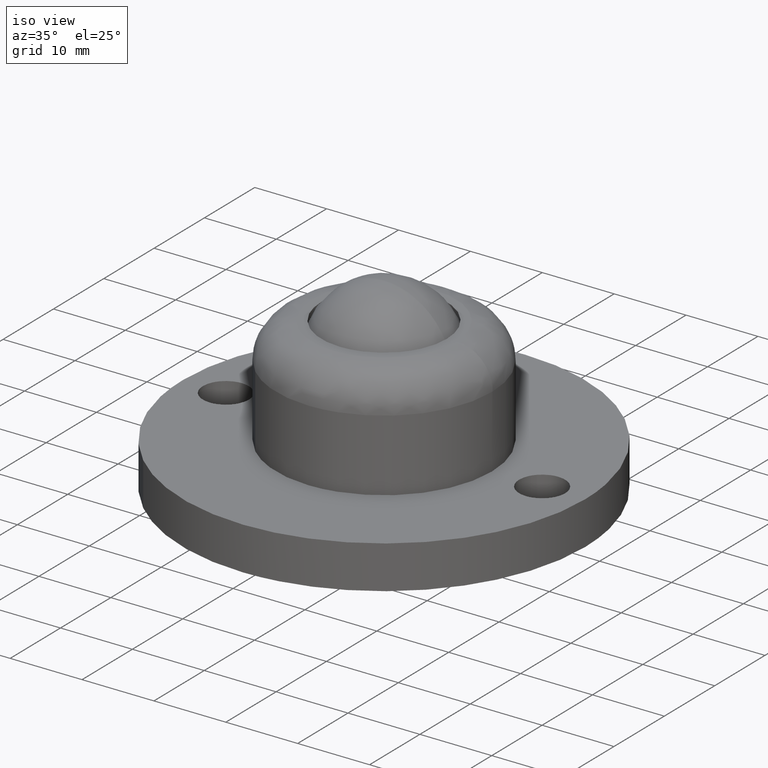
[diagram: clean part render]
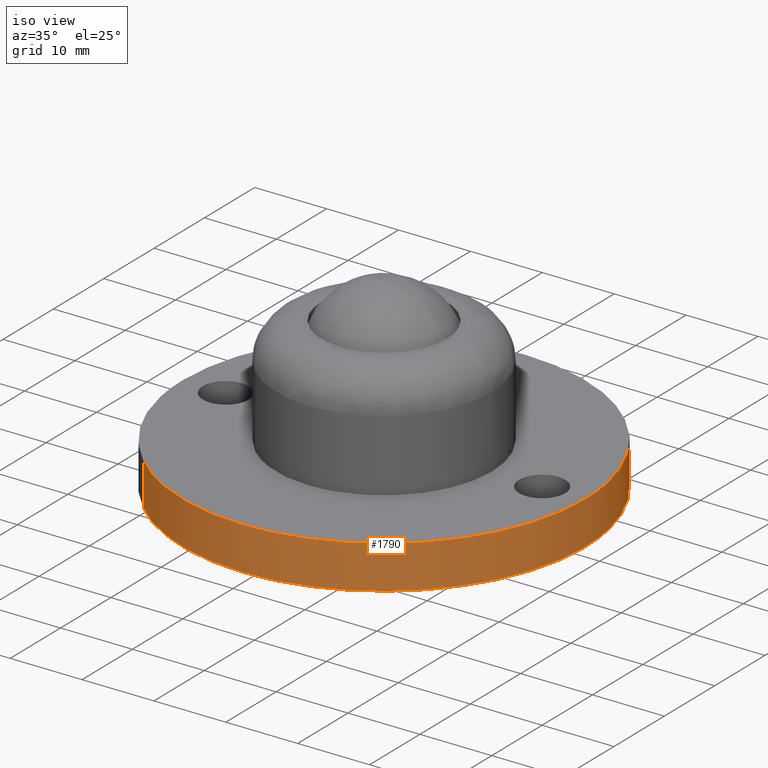
[diagram: tour spotlight — one face highlighted and labeled with its STEP entity id]
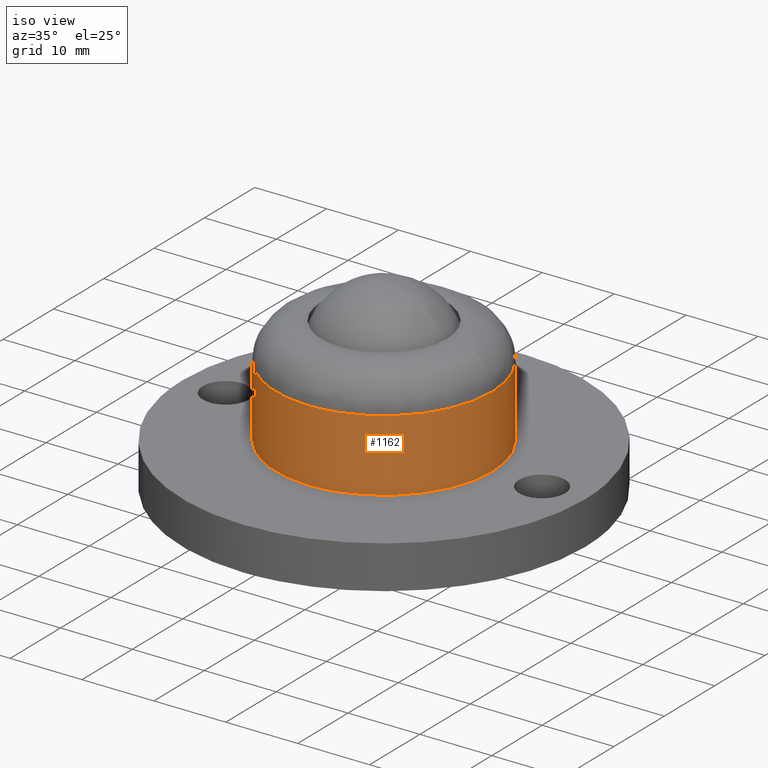
[diagram: tour spotlight — one face highlighted and labeled with its STEP entity id]
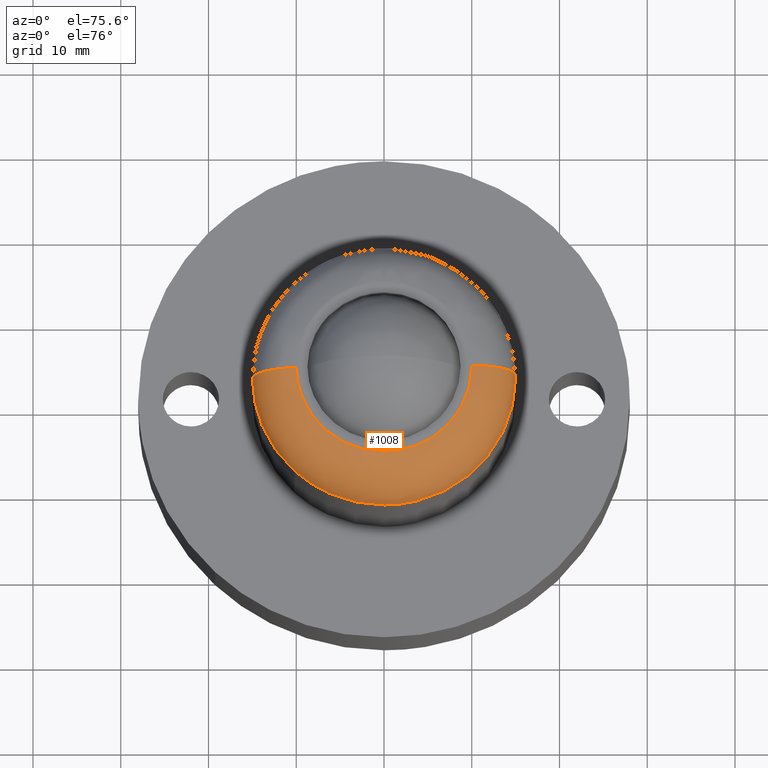
[diagram: tour spotlight — one face highlighted and labeled with its STEP entity id]
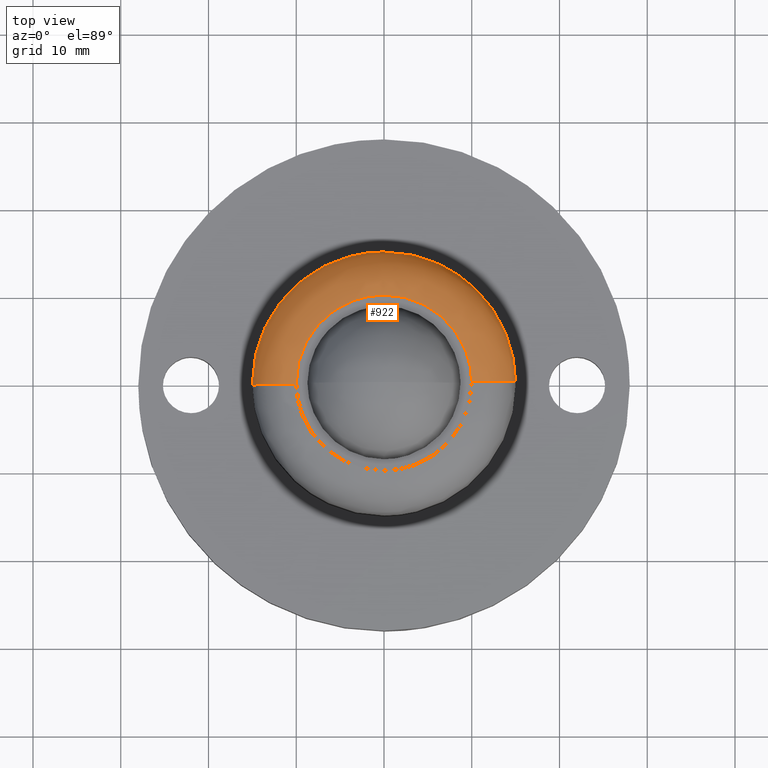
[diagram: tour spotlight — one face highlighted and labeled with its STEP entity id]
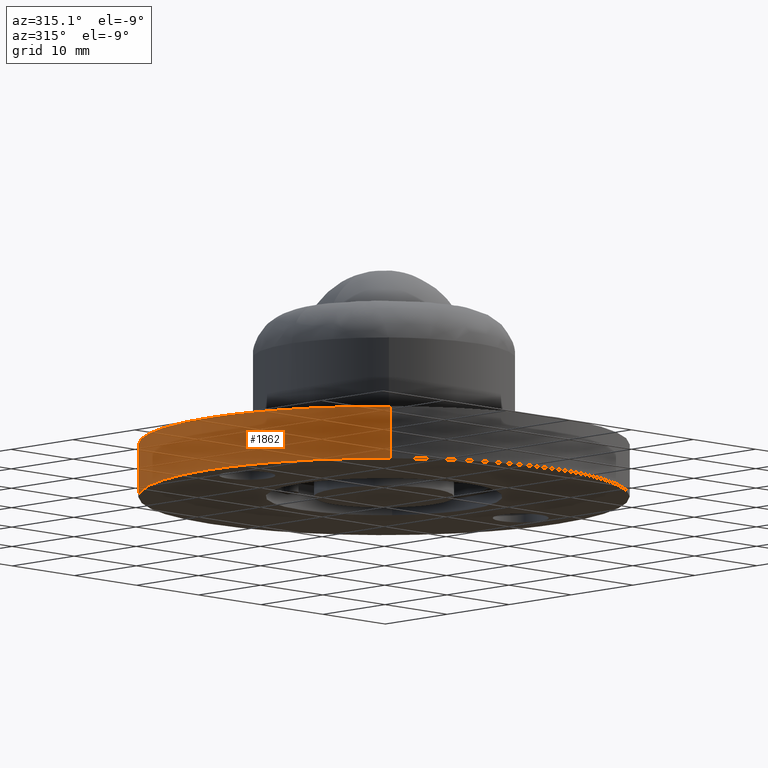
[diagram: tour spotlight — one face highlighted and labeled with its STEP entity id]
A machine part: a face-by-face anatomy tour. The part has 43 B-rep faces; the first image is the clean iso view, then the 5 largest visible faces are spotlighted one at a time (largest first), each with its STEP entity span.

Face 1 — iso view, entity #1790. In plain terms, the highlighted face is a freeform B-spline surface patch.
Definition (entity closure, byte-faithful):
#1168=CARTESIAN_POINT('',(-19.273928130718851,-20.310482377626691,6.000000000000110));
#1169=VERTEX_POINT('',#1168);
#1185=CARTESIAN_POINT('',(0.0,-28.0,6.000000000000110));
#1186=VERTEX_POINT('',#1185);
#1187=CARTESIAN_POINT('',(0.0,-28.0,6.000000000000110));
#1188=CARTESIAN_POINT('',(-1.273272756338156,-28.000045014123359,6.000000000000109));
#1189=CARTESIAN_POINT('',(-3.985896736180282,-27.814696475741041,6.000000000000116));
#1190=CARTESIAN_POINT('',(-7.730061789684950,-27.002848322077789,6.000000000000097));
#1191=CARTESIAN_POINT('',(-11.220473785326821,-25.728882692686440,6.000000000000084));
#1192=CARTESIAN_POINT('',(-14.135886279950119,-24.242272144283440,6.000000000000151));
#1193=CARTESIAN_POINT('',(-16.858855188158099,-22.430060242734768,6.000000000000036));
#1194=CARTESIAN_POINT('',(-18.470818302859989,-21.072643694672202,6.000000000000177));
#1195=CARTESIAN_POINT('',(-19.273928130718851,-20.310482377626691,6.000000000000110));
#1196=B_SPLINE_CURVE_WITH_KNOTS('',3,(#1187,#1188,#1189,#1190,#1191,#1192,#1193,#1194,#1195),.UNSPECIFIED.,.F.,.U.,(4,1,1,1,1,1,4),(5.234206E-009,3.819822314806416,8.137887611719680,11.459454651104700,14.947128572263340,17.936562622358760,21.258141466555099),.UNSPECIFIED.);
#1197=EDGE_CURVE('',#1186,#1169,#1196,.T.);
#1199=CARTESIAN_POINT('',(28.0,0.0,6.000000000000110));
#1200=VERTEX_POINT('',#1199);
#1201=CARTESIAN_POINT('',(28.0,0.0,6.000000000000110));
#1202=CARTESIAN_POINT('',(28.000076249837988,-1.374443402842602,6.000000000000105));
#1203=CARTESIAN_POINT('',(27.822531943628391,-3.779703144594035,6.000000000000131));
#1204=CARTESIAN_POINT('',(27.188107891370880,-6.869826014397530,6.000000000000088));
#1205=CARTESIAN_POINT('',(26.381429841663248,-9.499990134449954,6.000000000000124));
#1206=CARTESIAN_POINT('',(25.205217506865569,-12.364641123564359,6.000000000000084));
#1207=CARTESIAN_POINT('',(23.450359889791049,-15.462409899912069,6.000000000000176));
#1208=CARTESIAN_POINT('',(21.391879244739979,-18.150661715067589,6.000000000000097));
#1209=CARTESIAN_POINT('',(19.138923898207349,-20.517000665945499,6.000000000000112));
#1210=CARTESIAN_POINT('',(16.328139413687659,-22.882267896264018,6.000000000000114));
#1211=CARTESIAN_POINT('',(12.987948747120541,-24.912216936348859,6.000000000000108));
#1212=CARTESIAN_POINT('',(9.508591224995064,-26.403587347672520,6.000000000000117));
#1213=CARTESIAN_POINT('',(6.373189358608293,-27.333763720096499,6.000000000000088));
#1214=CARTESIAN_POINT('',(3.149763346632095,-27.882857546572680,6.000000000000195));
#1215=CARTESIAN_POINT('',(1.030828756229254,-28.000022687795880,5.999999999999764));
#1216=CARTESIAN_POINT('',(0.0,-28.0,6.000000000000110));
#1217=B_SPLINE_CURVE_WITH_KNOTS('',3,(#1201,#1202,#1203,#1204,#1205,#1206,#1207,#1208,#1209,#1210,#1211,#1212,#1213,#1214,#1215,#1216),.UNSPECIFIED.,.F.,.U.,(4,1,1,1,1,1,1,1,1,1,1,1,1,4),(0.000000013098202,4.123326911583426,7.215847821432249,9.449332906309564,12.370044910812609,16.493394751371351,20.101326401665119,22.506580174208398,26.286321359345589,31.096904363942741,34.189417934214489,37.625542341849901,40.889876448166540,43.982366145714813),.UNSPECIFIED.);
#1218=EDGE_CURVE('',#1200,#1186,#1217,.T.);
#1220=CARTESIAN_POINT('',(19.273928130718851,20.310482377626691,6.000000000000110));
#1221=VERTEX_POINT('',#1220);
#1222=CARTESIAN_POINT('',(19.273928130718851,20.310482377626691,6.000000000000110));
#1223=CARTESIAN_POINT('',(20.218344450665100,19.414354821185761,6.000000000000111));
#1224=CARTESIAN_POINT('',(21.741302241059799,17.752399976998412,6.000000000000104));
#1225=CARTESIAN_POINT('',(23.535002146494321,15.247122862021531,6.000000000000128));
#1226=CARTESIAN_POINT('',(24.992965224628289,12.737305890199581,6.000000000000087));
#1227=CARTESIAN_POINT('',(26.206128323567722,10.032679698480230,6.000000000000171));
#1228=CARTESIAN_POINT('',(27.103014224652590,7.208494259070555,6.000000000000010));
#1229=CARTESIAN_POINT('',(27.804361690636320,3.905685441720465,6.000000000000202));
#1230=CARTESIAN_POINT('',(28.000132324409300,1.538626680231457,6.000000000000074));
#1231=CARTESIAN_POINT('',(28.0,0.0,6.000000000000110));
#1232=B_SPLINE_CURVE_WITH_KNOTS('',3,(#1222,#1223,#1224,#1225,#1226,#1227,#1228,#1229,#1230,#1231),.UNSPECIFIED.,.F.,.U.,(4,1,1,1,1,1,1,4),(4.488633E-009,3.905721687732147,6.746254458241012,9.231720163970364,12.604830427692990,15.622902537468301,18.108366910560498,22.724224909126772),.UNSPECIFIED.);
#1233=EDGE_CURVE('',#1221,#1200,#1232,.T.);
#1707=CARTESIAN_POINT('',(19.273928119425101,20.310482388344049,6.150000000000116));
#1708=CARTESIAN_POINT('',(39.584410507769157,1.036554268918941,6.150000000000116));
#1709=CARTESIAN_POINT('',(20.310482388344049,-19.273928119425101,6.150000000000116));
#1710=CARTESIAN_POINT('',(1.036554268918941,-39.584410507769157,6.150000000000116));
#1711=CARTESIAN_POINT('',(-19.273928119425101,-20.310482388344049,6.150000000000116));
#1712=CARTESIAN_POINT('',(19.273928119425101,20.310482388344049,-0.153750000000109));
#1713=CARTESIAN_POINT('',(39.584410507769157,1.036554268918941,-0.153750000000109));
#1714=CARTESIAN_POINT('',(20.310482388344049,-19.273928119425101,-0.153750000000109));
#1715=CARTESIAN_POINT('',(1.036554268918941,-39.584410507769157,-0.153750000000109));
#1716=CARTESIAN_POINT('',(-19.273928119425101,-20.310482388344049,-0.153750000000109));
#1724=(BOUNDED_SURFACE()B_SPLINE_SURFACE(2,1,((#1707,#1712),(#1708,#1713),(#1709,#1714),(#1710,#1715),(#1711,#1716)),.UNSPECIFIED.,.F.,.F.,.U.)B_SPLINE_SURFACE_WITH_KNOTS((3,2,3),(2,2),(0.0,46.391918985786631,92.783837971573263),(0.0,6.303750000000226),.UNSPECIFIED.)GEOMETRIC_REPRESENTATION_ITEM()RATIONAL_B_SPLINE_SURFACE(((1.0,1.0),(0.707106781186548,0.707106781186548),(1.0,1.0),(0.707106781186548,0.707106781186548),(1.0,1.0)))REPRESENTATION_ITEM('')SURFACE());
#1725=CARTESIAN_POINT('',(19.273928130859929,20.310482377492811,-4.467069E-014));
#1726=VERTEX_POINT('',#1725);
#1727=CARTESIAN_POINT('',(28.0,0.0,0.0));
#1728=VERTEX_POINT('',#1727);
#1729=CARTESIAN_POINT('',(19.273928130859929,20.310482377492811,-4.467069E-014));
#1730=CARTESIAN_POINT('',(20.132475116096209,19.495809698643630,-4.210461E-014));
#1731=CARTESIAN_POINT('',(21.665317932090101,17.844264448589001,-3.721870E-014));
#1732=CARTESIAN_POINT('',(23.858480257417298,14.821879223787230,-2.920911E-014));
#1733=CARTESIAN_POINT('',(25.819298197013630,11.158130855632329,-2.056224E-014));
#1734=CARTESIAN_POINT('',(27.114770568252439,7.332693946743636,-1.267857E-014));
#1735=CARTESIAN_POINT('',(27.842846395755629,3.550633745052040,-5.725840E-015));
#1736=CARTESIAN_POINT('',(28.000060378860809,1.301907709527263,-2.011660E-015));
#1737=CARTESIAN_POINT('',(28.0,0.0,0.0));
#1738=B_SPLINE_CURVE_WITH_KNOTS('',3,(#1729,#1730,#1731,#1732,#1733,#1734,#1735,#1736,#1737),.UNSPECIFIED.,.F.,.U.,(4,1,1,1,1,1,4),(4.489728E-009,3.550653828297747,6.746254458183490,11.184583809113141,15.977970455237029,18.818503225721710,22.724224908932278),.UNSPECIFIED.);
#1739=EDGE_CURVE('',#1726,#1728,#1738,.T.);
#1740=ORIENTED_EDGE('',*,*,#1739,.F.);
#1741=CARTESIAN_POINT('',(19.273928130718851,20.310482377626691,6.000000000000110));
#1742=CARTESIAN_POINT('',(19.273928130859929,20.310482377492811,-4.467069E-014));
#1743=QUASI_UNIFORM_CURVE('',1,(#1741,#1742),.UNSPECIFIED.,.F.,.U.);
#1744=EDGE_CURVE('',#1221,#1726,#1743,.T.);
#1745=ORIENTED_EDGE('',*,*,#1744,.F.);
#1746=ORIENTED_EDGE('',*,*,#1233,.T.);
#1747=ORIENTED_EDGE('',*,*,#1218,.T.);
#1748=ORIENTED_EDGE('',*,*,#1197,.T.);
#1749=CARTESIAN_POINT('',(-19.273928130859929,-20.310482377492811,-1.020085E-013));
#1750=VERTEX_POINT('',#1749);
#1751=CARTESIAN_POINT('',(-19.273928130718851,-20.310482377626691,6.000000000000110));
#1752=CARTESIAN_POINT('',(-19.273928130859929,-20.310482377492811,-1.020085E-013));
#1753=QUASI_UNIFORM_CURVE('',1,(#1751,#1752),.UNSPECIFIED.,.F.,.U.);
#1754=EDGE_CURVE('',#1169,#1750,#1753,.T.);
#1755=ORIENTED_EDGE('',*,*,#1754,.T.);
#1756=CARTESIAN_POINT('',(0.0,-28.0,-8.526513E-014));
#1757=VERTEX_POINT('',#1756);
#1758=CARTESIAN_POINT('',(0.0,-28.0,-8.526513E-014));
#1759=CARTESIAN_POINT('',(-1.605438397618750,-28.000135577902050,-8.763522E-014));
#1760=CARTESIAN_POINT('',(-4.318017297702153,-27.766040740922840,-9.128298E-014));
#1761=CARTESIAN_POINT('',(-7.826700851526770,-26.939547584354909,-9.520394E-014));
#1762=CARTESIAN_POINT('',(-10.702353453694920,-25.928504731093550,-9.790946E-014));
#1763=CARTESIAN_POINT('',(-13.659551795668261,-24.529531146999549,-1.001447E-013));
#1764=CARTESIAN_POINT('',(-16.604367127142201,-22.644441706103990,-1.016215E-013));
#1765=CARTESIAN_POINT('',(-18.470811432248759,-21.072632957001101,-1.019834E-013));
#1766=CARTESIAN_POINT('',(-19.273928130859929,-20.310482377492811,-1.020085E-013));
#1767=B_SPLINE_CURVE_WITH_KNOTS('',3,(#1758,#1759,#1760,#1761,#1762,#1763,#1764,#1765,#1766),.UNSPECIFIED.,.F.,.U.,(4,1,1,1,1,1,4),(5.236494E-009,4.816296728663513,8.137887611795735,10.795143712620110,13.950649581649699,17.936562622523500,21.258141466749539),.UNSPECIFIED.);
#1768=EDGE_CURVE('',#1757,#1750,#1767,.T.);
#1769=ORIENTED_EDGE('',*,*,#1768,.F.);
#1770=CARTESIAN_POINT('',(28.0,0.0,0.0));
#1771=CARTESIAN_POINT('',(28.000232533641832,-1.832607456749873,-2.789959E-015));
#1772=CARTESIAN_POINT('',(27.689635167212309,-4.982292385528355,-8.058555E-015));
#1773=CARTESIAN_POINT('',(26.599299450177909,-8.969519843168404,-1.578961E-014));
#1774=CARTESIAN_POINT('',(25.335861846370769,-12.046327157704980,-2.239803E-014));
#1775=CARTESIAN_POINT('',(23.968484513674341,-14.567149611807590,-2.831817E-014));
#1776=CARTESIAN_POINT('',(22.063575819264720,-17.362173407831019,-3.547425E-014));
#1777=CARTESIAN_POINT('',(19.666031906154821,-20.073597446898400,-4.325312E-014));
#1778=CARTESIAN_POINT('',(16.811188763173352,-22.475652633288519,-5.125723E-014));
#1779=CARTESIAN_POINT('',(13.836837273670209,-24.423681155450470,-5.875200E-014));
#1780=CARTESIAN_POINT('',(10.436786011859279,-26.096205281006348,-6.647546E-014));
#1781=CARTESIAN_POINT('',(6.712507521395651,-27.276000760184530,-7.394237E-014));
#1782=CARTESIAN_POINT('',(3.149762356177814,-27.882856056245700,-8.029096E-014));
#1783=CARTESIAN_POINT('',(1.030828602055164,-28.000021514748330,-8.369563E-014));
#1784=CARTESIAN_POINT('',(0.0,-28.0,-8.526513E-014));
#1785=B_SPLINE_CURVE_WITH_KNOTS('',3,(#1770,#1771,#1772,#1773,#1774,#1775,#1776,#1777,#1778,#1779,#1780,#1781,#1782,#1783,#1784),.UNSPECIFIED.,.F.,.U.,(4,1,1,1,1,1,1,1,1,1,1,1,4),(0.000000013098202,5.497783715436704,9.449332906309564,12.370044910812609,15.462564266716280,18.039644025178308,22.506580174208398,26.286321359345589,29.207038563851420,33.158581557591148,37.625542341849901,40.889876448166540,43.982366145714813),.UNSPECIFIED.);
#1786=EDGE_CURVE('',#1728,#1757,#1785,.T.);
#1787=ORIENTED_EDGE('',*,*,#1786,.F.);
#1788=EDGE_LOOP('',(#1740,#1745,#1746,#1747,#1748,#1755,#1769,#1787));
#1789=FACE_OUTER_BOUND('',#1788,.T.);
#1790=ADVANCED_FACE('',(#1789),#1724,.T.);

Face 2 — iso view, entity #1162. In plain terms, the highlighted face is a freeform B-spline surface patch.
Definition (entity closure, byte-faithful):
#836=CARTESIAN_POINT('',(14.998815663056909,0.188490598256681,16.000000000028351));
#837=VERTEX_POINT('',#836);
#852=CARTESIAN_POINT('',(10.187777157768441,11.009504829175681,16.000000000024109));
#853=VERTEX_POINT('',#852);
#854=CARTESIAN_POINT('',(10.187777157768441,11.009504829175681,16.000000000024109));
#855=CARTESIAN_POINT('',(10.839350727993770,10.406671722140560,16.000000000024709));
#856=CARTESIAN_POINT('',(11.821432945125579,9.320873810758158,16.000000000025612));
#857=CARTESIAN_POINT('',(13.092581725004910,7.420534241809883,16.000000000026759));
#858=CARTESIAN_POINT('',(14.102831959163099,5.329665868927488,16.000000000027590));
#859=CARTESIAN_POINT('',(14.813424366985330,2.817647700116391,16.000000000028439));
#860=CARTESIAN_POINT('',(14.988125687793660,1.044387218121508,16.000000000028169));
#861=CARTESIAN_POINT('',(14.998815663056909,0.188490598256681,16.000000000028351));
#862=B_SPLINE_CURVE_WITH_KNOTS('',3,(#854,#855,#856,#857,#858,#859,#860,#861),.UNSPECIFIED.,.F.,.U.,(4,1,1,1,1,4),(0.000000011828549,2.662994156154062,4.374927556151388,6.847689595747325,9.605806306162791,12.173691903141931),.UNSPECIFIED.);
#863=EDGE_CURVE('',#853,#837,#862,.T.);
#955=CARTESIAN_POINT('',(-10.187777157768441,-11.009504829175690,16.000000000024102));
#956=VERTEX_POINT('',#955);
#968=CARTESIAN_POINT('',(0.094237883479936,-14.999703971122511,16.000000000014179));
#969=VERTEX_POINT('',#968);
#970=CARTESIAN_POINT('',(0.094237883479936,-14.999703971122511,16.000000000014179));
#971=CARTESIAN_POINT('',(-1.111638862749991,-15.007593900225920,16.000000000015259));
#972=CARTESIAN_POINT('',(-3.201243809358497,-14.767134057480501,16.000000000017391));
#973=CARTESIAN_POINT('',(-6.085081956337157,-13.801513283906990,16.000000000020229));
#974=CARTESIAN_POINT('',(-8.333795846247371,-12.556926919397490,16.000000000022212));
#975=CARTESIAN_POINT('',(-9.648112347047263,-11.508912649489909,16.000000000023700));
#976=CARTESIAN_POINT('',(-10.187777157768441,-11.009504829175690,16.000000000024102));
#977=B_SPLINE_CURVE_WITH_KNOTS('',3,(#970,#971,#972,#973,#974,#975,#976),.UNSPECIFIED.,.F.,.U.,(4,1,1,1,4),(0.000000010007371,3.617620953228951,6.264647123078524,9.088167222938841,11.294032616947780),.UNSPECIFIED.);
#978=EDGE_CURVE('',#969,#956,#977,.T.);
#980=CARTESIAN_POINT('',(14.999999999999700,0.0,16.0));
#981=VERTEX_POINT('',#980);
#982=CARTESIAN_POINT('',(14.999999999999700,0.0,16.0));
#983=CARTESIAN_POINT('',(15.000049350712120,-0.763919839272527,16.000000000000011));
#984=CARTESIAN_POINT('',(14.901734651123430,-2.047290388768373,16.000000000000089));
#985=CARTESIAN_POINT('',(14.540919645675610,-3.784917162419245,16.000000000000451));
#986=CARTESIAN_POINT('',(13.997939917733220,-5.506336039490239,16.000000000001009));
#987=CARTESIAN_POINT('',(13.031482425436259,-7.592360577852523,16.000000000001819));
#988=CARTESIAN_POINT('',(11.473930591467919,-9.801130858795274,16.000000000003631));
#989=CARTESIAN_POINT('',(9.596695463565007,-11.610925649067619,16.000000000005048));
#990=CARTESIAN_POINT('',(7.962673519767044,-12.748664229661729,16.000000000006811));
#991=CARTESIAN_POINT('',(6.458337481296235,-13.567059214938320,16.000000000008111));
#992=CARTESIAN_POINT('',(4.849344520775965,-14.242469142512260,16.000000000009688));
#993=CARTESIAN_POINT('',(2.659981553274595,-14.831828937251499,16.000000000011742));
#994=CARTESIAN_POINT('',(1.010931536863265,-14.994043661234061,16.000000000013319));
#995=CARTESIAN_POINT('',(0.094237883479936,-14.999703971122511,16.000000000014179));
#996=B_SPLINE_CURVE_WITH_KNOTS('',3,(#982,#983,#984,#985,#986,#987,#988,#989,#990,#991,#992,#993,#994,#995),.UNSPECIFIED.,.F.,.U.,(4,1,1,1,1,1,1,1,1,1,1,4),(0.000000043158789,2.291753721640276,3.850165607686915,5.316910063546843,7.700357803954621,10.725516345794251,13.383946917941239,15.492373854090911,16.684093316406059,18.517521080349631,20.717623584914190,23.467742918632531),.UNSPECIFIED.);
#997=EDGE_CURVE('',#981,#969,#996,.T.);
#999=CARTESIAN_POINT('',(14.998815663056909,0.188490598256681,16.000000000028351));
#1000=CARTESIAN_POINT('',(14.999999999999700,0.0,16.0));
#1001=QUASI_UNIFORM_CURVE('',1,(#999,#1000),.UNSPECIFIED.,.F.,.U.);
#1002=EDGE_CURVE('',#837,#981,#1001,.T.);
#1031=CARTESIAN_POINT('',(10.187777206663190,11.009504958492119,6.000000000000091));
#1032=VERTEX_POINT('',#1031);
#1033=CARTESIAN_POINT('',(10.187777157768441,11.009504829175681,16.000000000024109));
#1034=CARTESIAN_POINT('',(10.187777206663190,11.009504958492119,6.000000000000091));
#1035=QUASI_UNIFORM_CURVE('',1,(#1033,#1034),.UNSPECIFIED.,.F.,.U.);
#1036=EDGE_CURVE('',#853,#1032,#1035,.T.);
#1071=CARTESIAN_POINT('',(-10.187777206663080,-11.009504958492011,6.000000000000091));
#1072=VERTEX_POINT('',#1071);
#1085=CARTESIAN_POINT('',(-10.187777157768441,-11.009504829175690,16.000000000024102));
#1086=CARTESIAN_POINT('',(-10.187777206663080,-11.009504958492011,6.000000000000091));
#1087=QUASI_UNIFORM_CURVE('',1,(#1085,#1086),.UNSPECIFIED.,.F.,.U.);
#1088=EDGE_CURVE('',#956,#1072,#1087,.T.);
#1093=CARTESIAN_POINT('',(10.187777142500170,11.009504843304359,16.250000000029061));
#1094=CARTESIAN_POINT('',(21.197281985804530,0.821727700804189,16.250000000029065));
#1095=CARTESIAN_POINT('',(11.009504843304359,-10.187777142500170,16.250000000029061));
#1096=CARTESIAN_POINT('',(0.821727700804189,-21.197281985804530,16.250000000029065));
#1097=CARTESIAN_POINT('',(-10.187777142500170,-11.009504843304359,16.250000000029061));
#1098=CARTESIAN_POINT('',(10.187777142500170,11.009504843304359,5.743749999999366));
#1099=CARTESIAN_POINT('',(21.197281985804530,0.821727700804189,5.743749999999367));
#1100=CARTESIAN_POINT('',(11.009504843304359,-10.187777142500170,5.743749999999366));
#1101=CARTESIAN_POINT('',(0.821727700804189,-21.197281985804530,5.743749999999367));
#1102=CARTESIAN_POINT('',(-10.187777142500170,-11.009504843304359,5.743749999999366));
#1110=(BOUNDED_SURFACE()B_SPLINE_SURFACE(2,1,((#1093,#1098),(#1094,#1099),(#1095,#1100),(#1096,#1101),(#1097,#1102)),.UNSPECIFIED.,.F.,.F.,.U.)B_SPLINE_SURFACE_WITH_KNOTS((3,2,3),(2,2),(0.0,24.852813742385202,49.705627484770403),(0.0,10.506250000029700),.UNSPECIFIED.)GEOMETRIC_REPRESENTATION_ITEM()RATIONAL_B_SPLINE_SURFACE(((1.0,1.0),(0.707106781186548,0.707106781186548),(1.0,1.0),(0.707106781186548,0.707106781186548),(1.0,1.0)))REPRESENTATION_ITEM('')SURFACE());
#1111=ORIENTED_EDGE('',*,*,#978,.T.);
#1112=ORIENTED_EDGE('',*,*,#1088,.T.);
#1113=CARTESIAN_POINT('',(-0.000000514032385,-14.999999999999689,6.000000000000091));
#1114=VERTEX_POINT('',#1113);
#1115=CARTESIAN_POINT('',(-0.000000514032385,-14.999999999999689,6.000000000000091));
#1116=CARTESIAN_POINT('',(-0.612486380762245,-15.000007512640501,6.000000000000085));
#1117=CARTESIAN_POINT('',(-2.041632659957544,-14.912391503870349,6.000000000000096));
#1118=CARTESIAN_POINT('',(-4.104840186136603,-14.485224483817150,6.000000000000114));
#1119=CARTESIAN_POINT('',(-6.271835620210035,-13.687035738509350,5.999999999999959));
#1120=CARTESIAN_POINT('',(-8.298802825095629,-12.575349904580261,6.000000000000405));
#1121=CARTESIAN_POINT('',(-9.588416002722303,-11.564199267907529,5.999999999999914));
#1122=CARTESIAN_POINT('',(-10.187777206663080,-11.009504958492011,6.000000000000091));
#1123=B_SPLINE_CURVE_WITH_KNOTS('',3,(#1115,#1116,#1117,#1118,#1119,#1120,#1121,#1122),.UNSPECIFIED.,.F.,.U.,(4,1,1,1,1,4),(0.000000010247307,1.837463576933532,4.287428578647943,6.299882818497271,8.749840359497647,11.199793191182140),.UNSPECIFIED.);
#1124=EDGE_CURVE('',#1114,#1072,#1123,.T.);
#1125=ORIENTED_EDGE('',*,*,#1124,.F.);
#1126=CARTESIAN_POINT('',(14.999999999999700,0.0,6.000000000000091));
#1127=VERTEX_POINT('',#1126);
#1128=CARTESIAN_POINT('',(14.999999999999700,0.0,6.000000000000091));
#1129=CARTESIAN_POINT('',(15.000074989132790,-0.859028561157862,6.000000000000092));
#1130=CARTESIAN_POINT('',(14.873135216475511,-2.331619973652520,6.000000000000092));
#1131=CARTESIAN_POINT('',(14.411484289227801,-4.275486703482938,6.000000000000091));
#1132=CARTESIAN_POINT('',(13.774749252262369,-6.038015752824640,6.000000000000098));
#1133=CARTESIAN_POINT('',(12.850795486046691,-7.845957132644837,6.000000000000031));
#1134=CARTESIAN_POINT('',(11.522617060220361,-9.695436405983568,6.000000000000297));
#1135=CARTESIAN_POINT('',(9.992102601258972,-11.254362318997190,5.999999999999572));
#1136=CARTESIAN_POINT('',(8.429884911336441,-12.450521420028830,6.000000000001021));
#1137=CARTESIAN_POINT('',(6.975045998450100,-13.310414503479890,5.999999999998920));
#1138=CARTESIAN_POINT('',(5.355305826043135,-14.052333010226111,6.000000000000621));
#1139=CARTESIAN_POINT('',(3.067853891443439,-14.777058512150679,5.999999999999691));
#1140=CARTESIAN_POINT('',(1.165848423785105,-15.000278523035799,6.000000000000265));
#1141=CARTESIAN_POINT('',(-0.000000514032385,-14.999999999999689,6.000000000000091));
#1142=B_SPLINE_CURVE_WITH_KNOTS('',3,(#1128,#1129,#1130,#1131,#1132,#1133,#1134,#1135,#1136,#1137,#1138,#1139,#1140,#1141),.UNSPECIFIED.,.F.,.U.,(4,1,1,1,1,1,1,1,1,1,1,4),(0.000000042430347,2.577074003765791,4.417864152545988,5.982535173357384,8.191481220354053,10.492469042058600,12.793394615243740,14.726222933293659,16.382934603020232,17.855565148970069,20.064513218020121,23.561982153493940),.UNSPECIFIED.);
#1143=EDGE_CURVE('',#1127,#1114,#1142,.T.);
#1144=ORIENTED_EDGE('',*,*,#1143,.F.);
#1145=CARTESIAN_POINT('',(10.187777206663190,11.009504958492119,6.000000000000091));
#1146=CARTESIAN_POINT('',(10.825793576460260,10.419190775720940,6.000000000000093));
#1147=CARTESIAN_POINT('',(12.042248791890410,9.079397211945965,6.000000000000076));
#1148=CARTESIAN_POINT('',(13.512198221835259,6.718989046687209,6.000000000000124));
#1149=CARTESIAN_POINT('',(14.475388324627840,4.213197168492525,6.000000000000032));
#1150=CARTESIAN_POINT('',(14.921575609628221,1.931588104744306,6.000000000000221));
#1151=CARTESIAN_POINT('',(15.000008868001130,0.579473644619647,5.999999999999924));
#1152=CARTESIAN_POINT('',(14.999999999999700,0.0,6.000000000000091));
#1153=B_SPLINE_CURVE_WITH_KNOTS('',3,(#1145,#1146,#1147,#1148,#1149,#1150,#1151,#1152),.UNSPECIFIED.,.F.,.U.,(4,1,1,1,1,4),(0.000000012767995,2.607646497180639,5.408470164318436,8.305842821939400,10.623762905842790,12.362188529042729),.UNSPECIFIED.);
#1154=EDGE_CURVE('',#1032,#1127,#1153,.T.);
#1155=ORIENTED_EDGE('',*,*,#1154,.F.);
#1156=ORIENTED_EDGE('',*,*,#1036,.F.);
#1157=ORIENTED_EDGE('',*,*,#863,.T.);
#1158=ORIENTED_EDGE('',*,*,#1002,.T.);
#1159=ORIENTED_EDGE('',*,*,#997,.T.);
#1160=EDGE_LOOP('',(#1111,#1112,#1125,#1144,#1155,#1156,#1157,#1158,#1159));
#1161=FACE_OUTER_BOUND('',#1160,.T.);
#1162=ADVANCED_FACE('',(#1161),#1110,.T.);

Face 3 — auxiliary view, entity #1008. In plain terms, the highlighted face is a freeform B-spline surface patch.
Definition (entity closure, byte-faithful):
#709=CARTESIAN_POINT('',(-9.999210443095326,-0.125660399110086,21.0));
#710=VERTEX_POINT('',#709);
#718=CARTESIAN_POINT('',(0.062805054344614,-9.999802774315672,21.0));
#719=VERTEX_POINT('',#718);
#720=CARTESIAN_POINT('',(0.062805054344614,-9.999802774315672,21.0));
#721=CARTESIAN_POINT('',(-0.813177316599174,-10.005611807915180,21.000000000000011));
#722=CARTESIAN_POINT('',(-2.240137805728252,-9.825584995934372,20.999999999999961));
#723=CARTESIAN_POINT('',(-4.245028264484744,-9.118679754629701,21.000000000000121));
#724=CARTESIAN_POINT('',(-5.715664766248270,-8.266019202241598,20.999999999999680));
#725=CARTESIAN_POINT('',(-7.062549182978366,-7.139480367335418,21.000000000000711));
#726=CARTESIAN_POINT('',(-8.109148617273645,-5.935038905590992,20.999999999999570));
#727=CARTESIAN_POINT('',(-8.913272797161460,-4.606307559138471,21.000000000000551));
#728=CARTESIAN_POINT('',(-9.418327271868757,-3.423861902667085,20.999999999999819));
#729=CARTESIAN_POINT('',(-9.850949381412008,-1.977667107635396,21.000000000000131));
#730=CARTESIAN_POINT('',(-9.989891004483095,-0.879353541175013,20.999999999999929));
#731=CARTESIAN_POINT('',(-9.999210443095326,-0.125660399110086,21.0));
#732=B_SPLINE_CURVE_WITH_KNOTS('',3,(#720,#721,#722,#723,#724,#725,#726,#727,#728,#729,#730,#731),.UNSPECIFIED.,.F.,.U.,(4,1,1,1,1,1,1,1,1,4),(0.000000047510442,2.627890225191633,4.277968296809620,6.355845185855008,7.700348531167800,9.533736820823030,11.122706289565389,12.344987796700931,13.383924157297240,15.645129376216531),.UNSPECIFIED.);
#733=EDGE_CURVE('',#719,#710,#732,.T.);
#735=CARTESIAN_POINT('',(9.999999999999799,0.0,21.0));
#736=VERTEX_POINT('',#735);
#737=CARTESIAN_POINT('',(9.999999999999799,0.0,21.0));
#738=CARTESIAN_POINT('',(10.000003490425980,-0.427790089742249,21.000000000000011));
#739=CARTESIAN_POINT('',(9.933282028173654,-1.466732670302480,20.999999999999979));
#740=CARTESIAN_POINT('',(9.602922146305694,-2.944057803672374,21.000000000000050));
#741=CARTESIAN_POINT('',(8.971096966647487,-4.516926613015439,20.999999999999851));
#742=CARTESIAN_POINT('',(8.198310368174633,-5.794780078665727,21.000000000000171));
#743=CARTESIAN_POINT('',(7.216039979824836,-6.968749764925461,20.999999999999460));
#744=CARTESIAN_POINT('',(6.096127918859487,-7.984408327194137,21.000000000000281));
#745=CARTESIAN_POINT('',(4.634102803416174,-8.924843047394088,21.000000000000309));
#746=CARTESIAN_POINT('',(3.005242958625298,-9.591029212677146,21.000000000000089));
#747=CARTESIAN_POINT('',(1.447629749438859,-9.929589153354248,20.999999999999851));
#748=CARTESIAN_POINT('',(0.490586444072640,-9.997125353850032,21.000000000000089));
#749=CARTESIAN_POINT('',(0.062805054344614,-9.999802774315672,21.0));
#750=B_SPLINE_CURVE_WITH_KNOTS('',3,(#737,#738,#739,#740,#741,#742,#743,#744,#745,#746,#747,#748,#749),.UNSPECIFIED.,.F.,.U.,(4,1,1,1,1,1,1,1,1,1,4),(0.000000047499384,1.283376662270145,3.116807906655010,4.522440044570654,6.355866624291405,7.578154394551026,9.105963730929386,10.878289453026751,12.772833015318030,14.361809512010151,15.645182147335310),.UNSPECIFIED.);
#751=EDGE_CURVE('',#736,#719,#750,.T.);
#753=CARTESIAN_POINT('',(9.999210443095326,0.125660399110083,21.0));
#754=VERTEX_POINT('',#753);
#755=CARTESIAN_POINT('',(9.999210443095326,0.125660399110083,21.0));
#756=CARTESIAN_POINT('',(9.999999999999799,0.0,21.0));
#757=QUASI_UNIFORM_CURVE('',1,(#755,#756),.UNSPECIFIED.,.F.,.U.);
#758=EDGE_CURVE('',#754,#736,#757,.T.);
#836=CARTESIAN_POINT('',(14.998815663056909,0.188490598256681,16.000000000028351));
#837=VERTEX_POINT('',#836);
#838=CARTESIAN_POINT('',(9.999210443095326,0.125660399110083,21.0));
#839=CARTESIAN_POINT('',(10.387788195336460,0.130543668194947,21.000073228685601));
#840=CARTESIAN_POINT('',(11.083105219888150,0.139281739558463,20.918517800675321));
#841=CARTESIAN_POINT('',(12.075665199593249,0.151755272673702,20.583829168533569));
#842=CARTESIAN_POINT('',(12.824482642775390,0.161165685506428,20.153495871584379));
#843=CARTESIAN_POINT('',(13.505555480329081,0.169724749702471,19.594486257398920));
#844=CARTESIAN_POINT('',(14.090936950197580,0.177081257406696,18.932487727669120));
#845=CARTESIAN_POINT('',(14.551931083296720,0.182874585453589,18.130105608152899));
#846=CARTESIAN_POINT('',(14.904261601229960,0.187302334356154,17.145294590783870));
#847=CARTESIAN_POINT('',(14.998990405252970,0.188492794259027,16.449988617136839));
#848=CARTESIAN_POINT('',(14.998815663056909,0.188490598256681,16.000000000028351));
#849=B_SPLINE_CURVE_WITH_KNOTS('',3,(#838,#839,#840,#841,#842,#843,#844,#845,#846,#847,#848),.UNSPECIFIED.,.F.,.U.,(4,1,1,1,1,1,1,1,4),(0.000000068281783,1.165819906739270,2.086227593642232,3.129347933387471,3.742961985702338,4.724685170284943,5.767803822646645,6.504122126097486,7.854030913764103),.UNSPECIFIED.);
#850=EDGE_CURVE('',#754,#837,#849,.T.);
#897=CARTESIAN_POINT('',(-14.998815663056909,-0.188490598256684,16.000000000028351));
#898=VERTEX_POINT('',#897);
#904=CARTESIAN_POINT('',(-9.999210443095326,-0.125660399110086,21.0));
#905=CARTESIAN_POINT('',(-10.305978983867300,-0.129515569208530,21.000029997598499));
#906=CARTESIAN_POINT('',(-10.899060140964050,-0.136968839144892,20.945242012907698));
#907=CARTESIAN_POINT('',(-11.690400812992079,-0.146913642764850,20.726232138658609));
#908=CARTESIAN_POINT('',(-12.437944547674761,-0.156308048864381,20.389343201120671));
#909=CARTESIAN_POINT('',(-13.020926574719271,-0.163634402700751,20.004928901064851));
#910=CARTESIAN_POINT('',(-13.588484514738029,-0.170766921537373,19.503026674048080));
#911=CARTESIAN_POINT('',(-14.030930870097890,-0.176327159073509,18.990063221977589));
#912=CARTESIAN_POINT('',(-14.454469925511070,-0.181649787960094,18.312001369460329));
#913=CARTESIAN_POINT('',(-14.721358373851119,-0.185003783640892,17.689354654639740));
#914=CARTESIAN_POINT('',(-14.939800324739981,-0.187748950628916,16.899904162793931));
#915=CARTESIAN_POINT('',(-14.998893565726959,-0.188491577271497,16.368162896276971));
#916=CARTESIAN_POINT('',(-14.998815663056909,-0.188490598256684,16.000000000028351));
#917=B_SPLINE_CURVE_WITH_KNOTS('',3,(#904,#905,#906,#907,#908,#909,#910,#911,#912,#913,#914,#915,#916),.UNSPECIFIED.,.F.,.U.,(4,1,1,1,1,1,1,1,1,1,4),(0.000000068284439,0.920377623177933,1.779427746839093,2.454392946490633,3.374781358420133,3.865675674094828,4.724685170285328,5.399638217654845,6.258681907733037,6.749563481132405,7.854030913764108),.UNSPECIFIED.);
#918=EDGE_CURVE('',#710,#898,#917,.T.);
#923=CARTESIAN_POINT('',(9.648161495745667,0.391117288341113,20.987896831538553));
#924=CARTESIAN_POINT('',(9.649847077334501,0.256990028039292,20.987896831538546));
#925=CARTESIAN_POINT('',(9.772843775876016,-9.530261037604062,20.987896831538542));
#926=CARTESIAN_POINT('',(0.121291369135977,-9.651552406740040,20.987896831538553));
#927=CARTESIAN_POINT('',(-9.530261037604062,-9.772843775876016,20.987896831538542));
#928=CARTESIAN_POINT('',(-9.653257736143972,0.014407289639730,20.987896831538549));
#929=CARTESIAN_POINT('',(-9.654943317731242,0.148534549816890,20.987896831538549));
#930=CARTESIAN_POINT('',(15.381065069967507,0.623517803326215,21.387685645394789));
#931=CARTESIAN_POINT('',(15.383752218198808,0.409692597428857,21.387685645394797));
#932=CARTESIAN_POINT('',(15.579833121746322,-15.193108574913534,21.387685645394786));
#933=CARTESIAN_POINT('',(0.193362273416396,-15.386470848329932,21.387685645394782));
#934=CARTESIAN_POINT('',(-15.193108574913534,-15.579833121746326,21.387685645394786));
#935=CARTESIAN_POINT('',(-15.389189478458503,0.022968050392633,21.387685645394782));
#936=CARTESIAN_POINT('',(-15.391876626687305,0.236793256091257,21.387685645394793));
#937=CARTESIAN_POINT('',(14.981448110232146,0.607318126140491,15.652314374123481));
#938=CARTESIAN_POINT('',(14.984065443401764,0.399048333883657,15.652314374123476));
#939=CARTESIAN_POINT('',(15.175051949767992,-14.798374931305787,15.652314374123485));
#940=CARTESIAN_POINT('',(0.188338509231102,-14.986713440536885,15.652314374123485));
#941=CARTESIAN_POINT('',(-14.798374931305787,-15.175051949767992,15.652314374123485));
#942=CARTESIAN_POINT('',(-14.989361437669523,0.022371315223307,15.652314374123481));
#943=CARTESIAN_POINT('',(-14.991978770836710,0.230641107286569,15.652314374123486));
#951=(BOUNDED_SURFACE()B_SPLINE_SURFACE(2,2,((#923,#930,#937),(#924,#931,#938),(#925,#932,#939),(#926,#933,#940),(#927,#934,#941),(#928,#935,#942),(#929,#936,#943)),.UNSPECIFIED.,.F.,.F.,.U.)B_SPLINE_SURFACE_WITH_KNOTS((3,1,2,1,3),(3,3),(0.0,0.496655211271985,25.329415751530000,50.162176291788022,50.658831502590232),(0.0,9.113649822426600),.UNSPECIFIED.)GEOMETRIC_REPRESENTATION_ITEM()RATIONAL_B_SPLINE_SURFACE(((0.927077710683399,0.608371547722107,0.927077722436361),(0.921709902962166,0.604849058233244,0.921709914647078),(0.647951709431553,0.425202094466791,0.647951717645915),(0.916342095240933,0.601326568744382,0.916342106857795),(0.647951709431553,0.425202094466791,0.647951717645915),(0.921709902957088,0.604849058229912,0.921709914642000),(0.927077710673244,0.608371547715443,0.927077722426206)))REPRESENTATION_ITEM('')SURFACE());
#952=ORIENTED_EDGE('',*,*,#751,.T.);
#953=ORIENTED_EDGE('',*,*,#733,.T.);
#954=ORIENTED_EDGE('',*,*,#918,.T.);
#955=CARTESIAN_POINT('',(-10.187777157768441,-11.009504829175690,16.000000000024102));
#956=VERTEX_POINT('',#955);
#957=CARTESIAN_POINT('',(-10.187777157768441,-11.009504829175690,16.000000000024102));
#958=CARTESIAN_POINT('',(-10.699688886547790,-10.535817573273169,16.000000000024588));
#959=CARTESIAN_POINT('',(-11.831472723339941,-9.331669652685813,16.000000000025619));
#960=CARTESIAN_POINT('',(-13.194860554562430,-7.293508977662248,16.000000000026809));
#961=CARTESIAN_POINT('',(-14.131171656672800,-5.169143178849978,16.000000000027669));
#962=CARTESIAN_POINT('',(-14.795473843492729,-2.849069167650152,16.000000000028258));
#963=CARTESIAN_POINT('',(-14.985854506237620,-1.234604903208745,16.000000000028340));
#964=CARTESIAN_POINT('',(-14.998815663056909,-0.188490598256684,16.000000000028351));
#965=B_SPLINE_CURVE_WITH_KNOTS('',3,(#957,#958,#959,#960,#961,#962,#963,#964),.UNSPECIFIED.,.F.,.U.,(4,1,1,1,1,4),(0.000000011830187,2.092352651813375,4.945570902497063,7.323235241210510,9.035161600871003,12.173691903141931),.UNSPECIFIED.);
#966=EDGE_CURVE('',#956,#898,#965,.T.);
#967=ORIENTED_EDGE('',*,*,#966,.F.);
#968=CARTESIAN_POINT('',(0.094237883479936,-14.999703971122511,16.000000000014179));
#969=VERTEX_POINT('',#968);
#970=CARTESIAN_POINT('',(0.094237883479936,-14.999703971122511,16.000000000014179));
#971=CARTESIAN_POINT('',(-1.111638862749991,-15.007593900225920,16.000000000015259));
#972=CARTESIAN_POINT('',(-3.201243809358497,-14.767134057480501,16.000000000017391));
#973=CARTESIAN_POINT('',(-6.085081956337157,-13.801513283906990,16.000000000020229));
#974=CARTESIAN_POINT('',(-8.333795846247371,-12.556926919397490,16.000000000022212));
#975=CARTESIAN_POINT('',(-9.648112347047263,-11.508912649489909,16.000000000023700));
#976=CARTESIAN_POINT('',(-10.187777157768441,-11.009504829175690,16.000000000024102));
#977=B_SPLINE_CURVE_WITH_KNOTS('',3,(#970,#971,#972,#973,#974,#975,#976),.UNSPECIFIED.,.F.,.U.,(4,1,1,1,4),(0.000000010007371,3.617620953228951,6.264647123078524,9.088167222938841,11.294032616947780),.UNSPECIFIED.);
#978=EDGE_CURVE('',#969,#956,#977,.T.);
#979=ORIENTED_EDGE('',*,*,#978,.F.);
#980=CARTESIAN_POINT('',(14.999999999999700,0.0,16.0));
#981=VERTEX_POINT('',#980);
#982=CARTESIAN_POINT('',(14.999999999999700,0.0,16.0));
#983=CARTESIAN_POINT('',(15.000049350712120,-0.763919839272527,16.000000000000011));
#984=CARTESIAN_POINT('',(14.901734651123430,-2.047290388768373,16.000000000000089));
#985=CARTESIAN_POINT('',(14.540919645675610,-3.784917162419245,16.000000000000451));
#986=CARTESIAN_POINT('',(13.997939917733220,-5.506336039490239,16.000000000001009));
#987=CARTESIAN_POINT('',(13.031482425436259,-7.592360577852523,16.000000000001819));
#988=CARTESIAN_POINT('',(11.473930591467919,-9.801130858795274,16.000000000003631));
#989=CARTESIAN_POINT('',(9.596695463565007,-11.610925649067619,16.000000000005048));
#990=CARTESIAN_POINT('',(7.962673519767044,-12.748664229661729,16.000000000006811));
#991=CARTESIAN_POINT('',(6.458337481296235,-13.567059214938320,16.000000000008111));
#992=CARTESIAN_POINT('',(4.849344520775965,-14.242469142512260,16.000000000009688));
#993=CARTESIAN_POINT('',(2.659981553274595,-14.831828937251499,16.000000000011742));
#994=CARTESIAN_POINT('',(1.010931536863265,-14.994043661234061,16.000000000013319));
#995=CARTESIAN_POINT('',(0.094237883479936,-14.999703971122511,16.000000000014179));
#996=B_SPLINE_CURVE_WITH_KNOTS('',3,(#982,#983,#984,#985,#986,#987,#988,#989,#990,#991,#992,#993,#994,#995),.UNSPECIFIED.,.F.,.U.,(4,1,1,1,1,1,1,1,1,1,1,4),(0.000000043158789,2.291753721640276,3.850165607686915,5.316910063546843,7.700357803954621,10.725516345794251,13.383946917941239,15.492373854090911,16.684093316406059,18.517521080349631,20.717623584914190,23.467742918632531),.UNSPECIFIED.);
#997=EDGE_CURVE('',#981,#969,#996,.T.);
#998=ORIENTED_EDGE('',*,*,#997,.F.);
#999=CARTESIAN_POINT('',(14.998815663056909,0.188490598256681,16.000000000028351));
#1000=CARTESIAN_POINT('',(14.999999999999700,0.0,16.0));
#1001=QUASI_UNIFORM_CURVE('',1,(#999,#1000),.UNSPECIFIED.,.F.,.U.);
#1002=EDGE_CURVE('',#837,#981,#1001,.T.);
#1003=ORIENTED_EDGE('',*,*,#1002,.F.);
#1004=ORIENTED_EDGE('',*,*,#850,.F.);
#1005=ORIENTED_EDGE('',*,*,#758,.T.);
#1006=EDGE_LOOP('',(#952,#953,#954,#967,#979,#998,#1003,#1004,#1005));
#1007=FACE_OUTER_BOUND('',#1006,.T.);
#1008=ADVANCED_FACE('',(#1007),#951,.T.);

Face 4 — top view, entity #922. In plain terms, the highlighted face is a freeform B-spline surface patch.
Definition (entity closure, byte-faithful):
#709=CARTESIAN_POINT('',(-9.999210443095326,-0.125660399110086,21.0));
#710=VERTEX_POINT('',#709);
#711=CARTESIAN_POINT('',(-9.999999999999799,0.0,21.0));
#712=VERTEX_POINT('',#711);
#713=CARTESIAN_POINT('',(-9.999210443095326,-0.125660399110086,21.0));
#714=CARTESIAN_POINT('',(-9.999999999999799,0.0,21.0));
#715=QUASI_UNIFORM_CURVE('',1,(#713,#714),.UNSPECIFIED.,.F.,.U.);
#716=EDGE_CURVE('',#710,#712,#715,.T.);
#753=CARTESIAN_POINT('',(9.999210443095326,0.125660399110083,21.0));
#754=VERTEX_POINT('',#753);
#760=CARTESIAN_POINT('',(-0.062805054344546,9.999802774315674,21.0));
#761=VERTEX_POINT('',#760);
#762=CARTESIAN_POINT('',(-0.062805054344546,9.999802774315674,21.0));
#763=CARTESIAN_POINT('',(0.629806769369434,10.004256048898929,21.000000000000050));
#764=CARTESIAN_POINT('',(1.954739761789263,9.874355390606846,20.999999999999961));
#765=CARTESIAN_POINT('',(3.559599928364766,9.384539974633416,21.000000000000060));
#766=CARTESIAN_POINT('',(4.886583630601037,8.755045594642315,20.999999999999819));
#767=CARTESIAN_POINT('',(5.936804926020118,8.084581579391534,21.000000000000441));
#768=CARTESIAN_POINT('',(7.089389092673732,7.108599762342404,20.999999999999300));
#769=CARTESIAN_POINT('',(8.015198136967820,6.043126206515268,21.000000000000799));
#770=CARTESIAN_POINT('',(8.922969821940416,4.613252066983266,20.999999999998980));
#771=CARTESIAN_POINT('',(9.502262230783014,3.257161836611547,21.000000000000409));
#772=CARTESIAN_POINT('',(9.897850387136932,1.652321186085972,21.000000000000011));
#773=CARTESIAN_POINT('',(9.992095291477996,0.696009379260859,20.999999999999940));
#774=CARTESIAN_POINT('',(9.999210443095326,0.125660399110083,21.0));
#775=B_SPLINE_CURVE_WITH_KNOTS('',3,(#762,#763,#764,#765,#766,#767,#768,#769,#770,#771,#772,#773,#774),.UNSPECIFIED.,.F.,.U.,(4,1,1,1,1,1,1,1,1,1,4),(0.000000047511287,2.077858580715612,3.972396518088729,5.011332138444669,6.478068084689799,7.700348531168805,9.533736820823506,10.694904153709260,12.772789932557060,13.933957265443320,15.645129376216470),.UNSPECIFIED.);
#776=EDGE_CURVE('',#761,#754,#775,.T.);
#778=CARTESIAN_POINT('',(-9.999999999999799,0.0,21.0));
#779=CARTESIAN_POINT('',(-10.000022602859961,0.509276758244206,21.000000000000039));
#780=CARTESIAN_POINT('',(-9.920469613534511,1.548201725415724,20.999999999999950));
#781=CARTESIAN_POINT('',(-9.520777843698665,3.238645438862484,21.000000000000011));
#782=CARTESIAN_POINT('',(-8.867531854045456,4.718939344449132,21.000000000000011));
#783=CARTESIAN_POINT('',(-7.920569671851411,6.172120719362959,20.999999999999979));
#784=CARTESIAN_POINT('',(-6.824491548096529,7.388688711664777,21.000000000000011));
#785=CARTESIAN_POINT('',(-5.555529804693159,8.355331278410310,20.999999999999901));
#786=CARTESIAN_POINT('',(-4.220650468407104,9.102846681338614,21.000000000000611));
#787=CARTESIAN_POINT('',(-2.485472207672074,9.775757081902563,20.999999999999179));
#788=CARTESIAN_POINT('',(-0.979535877629816,9.994398396938827,21.000000000000711));
#789=CARTESIAN_POINT('',(-0.062805054344546,9.999802774315674,21.0));
#790=B_SPLINE_CURVE_WITH_KNOTS('',3,(#778,#779,#780,#781,#782,#783,#784,#785,#786,#787,#788,#789),.UNSPECIFIED.,.F.,.U.,(4,1,1,1,1,1,1,1,1,4),(0.000000047512044,1.527830892360802,3.116807906664668,5.194699860073865,6.355866624298292,8.311477112554069,10.083803941509780,11.122743806496830,12.895061498253570,15.645182147335291),.UNSPECIFIED.);
#791=EDGE_CURVE('',#712,#761,#790,.T.);
#804=CARTESIAN_POINT('',(-9.648161495745669,-0.391117288341109,20.987896831538546));
#805=CARTESIAN_POINT('',(-9.649847077334501,-0.256990028039290,20.987896831538549));
#806=CARTESIAN_POINT('',(-9.772843775876016,9.530261037604060,20.987896831538542));
#807=CARTESIAN_POINT('',(-0.121291369135978,9.651552406740040,20.987896831538553));
#808=CARTESIAN_POINT('',(9.530261037604060,9.772843775876016,20.987896831538542));
#809=CARTESIAN_POINT('',(9.653257736143972,-0.014407289639731,20.987896831538549));
#810=CARTESIAN_POINT('',(9.654943317731242,-0.148534549816893,20.987896831538546));
#811=CARTESIAN_POINT('',(-15.381065069967509,-0.623517803326208,21.387685645394797));
#812=CARTESIAN_POINT('',(-15.383752218198804,-0.409692597428854,21.387685645394797));
#813=CARTESIAN_POINT('',(-15.579833121746326,15.193108574913534,21.387685645394786));
#814=CARTESIAN_POINT('',(-0.193362273416397,15.386470848329932,21.387685645394782));
#815=CARTESIAN_POINT('',(15.193108574913532,15.579833121746326,21.387685645394786));
#816=CARTESIAN_POINT('',(15.389189478458501,-0.022968050392635,21.387685645394793));
#817=CARTESIAN_POINT('',(15.391876626687305,-0.236793256091262,21.387685645394786));
#818=CARTESIAN_POINT('',(-14.981448110232151,-0.607318126140484,15.652314374123486));
#819=CARTESIAN_POINT('',(-14.984065443401768,-0.399048333883654,15.652314374123478));
#820=CARTESIAN_POINT('',(-15.175051949767994,14.798374931305787,15.652314374123485));
#821=CARTESIAN_POINT('',(-0.188338509231103,14.986713440536885,15.652314374123485));
#822=CARTESIAN_POINT('',(14.798374931305785,15.175051949767994,15.652314374123485));
#823=CARTESIAN_POINT('',(14.989361437669521,-0.022371315223308,15.652314374123479));
#824=CARTESIAN_POINT('',(14.991978770836706,-0.230641107286574,15.652314374123483));
#832=(BOUNDED_SURFACE()B_SPLINE_SURFACE(2,2,((#804,#811,#818),(#805,#812,#819),(#806,#813,#820),(#807,#814,#821),(#808,#815,#822),(#809,#816,#823),(#810,#817,#824)),.UNSPECIFIED.,.F.,.F.,.U.)B_SPLINE_SURFACE_WITH_KNOTS((3,1,2,1,3),(3,3),(0.0,0.496655211271974,25.329415751529989,50.162176291788001,50.658831502590218),(0.0,9.113649822426595),.UNSPECIFIED.)GEOMETRIC_REPRESENTATION_ITEM()RATIONAL_B_SPLINE_SURFACE(((0.927077710683399,0.608371547722107,0.927077722436361),(0.921709902962166,0.604849058233244,0.921709914647078),(0.647951709431553,0.425202094466791,0.647951717645915),(0.916342095240933,0.601326568744382,0.916342106857795),(0.647951709431553,0.425202094466791,0.647951717645915),(0.921709902957089,0.604849058229913,0.921709914642001),(0.927077710673244,0.608371547715443,0.927077722426206)))REPRESENTATION_ITEM('')SURFACE());
#833=ORIENTED_EDGE('',*,*,#716,.T.);
#834=ORIENTED_EDGE('',*,*,#791,.T.);
#835=ORIENTED_EDGE('',*,*,#776,.T.);
#836=CARTESIAN_POINT('',(14.998815663056909,0.188490598256681,16.000000000028351));
#837=VERTEX_POINT('',#836);
#838=CARTESIAN_POINT('',(9.999210443095326,0.125660399110083,21.0));
#839=CARTESIAN_POINT('',(10.387788195336460,0.130543668194947,21.000073228685601));
#840=CARTESIAN_POINT('',(11.083105219888150,0.139281739558463,20.918517800675321));
#841=CARTESIAN_POINT('',(12.075665199593249,0.151755272673702,20.583829168533569));
#842=CARTESIAN_POINT('',(12.824482642775390,0.161165685506428,20.153495871584379));
#843=CARTESIAN_POINT('',(13.505555480329081,0.169724749702471,19.594486257398920));
#844=CARTESIAN_POINT('',(14.090936950197580,0.177081257406696,18.932487727669120));
#845=CARTESIAN_POINT('',(14.551931083296720,0.182874585453589,18.130105608152899));
#846=CARTESIAN_POINT('',(14.904261601229960,0.187302334356154,17.145294590783870));
#847=CARTESIAN_POINT('',(14.998990405252970,0.188492794259027,16.449988617136839));
#848=CARTESIAN_POINT('',(14.998815663056909,0.188490598256681,16.000000000028351));
#849=B_SPLINE_CURVE_WITH_KNOTS('',3,(#838,#839,#840,#841,#842,#843,#844,#845,#846,#847,#848),.UNSPECIFIED.,.F.,.U.,(4,1,1,1,1,1,1,1,4),(0.000000068281783,1.165819906739270,2.086227593642232,3.129347933387471,3.742961985702338,4.724685170284943,5.767803822646645,6.504122126097486,7.854030913764103),.UNSPECIFIED.);
#850=EDGE_CURVE('',#754,#837,#849,.T.);
#851=ORIENTED_EDGE('',*,*,#850,.T.);
#852=CARTESIAN_POINT('',(10.187777157768441,11.009504829175681,16.000000000024109));
#853=VERTEX_POINT('',#852);
#854=CARTESIAN_POINT('',(10.187777157768441,11.009504829175681,16.000000000024109));
#855=CARTESIAN_POINT('',(10.839350727993770,10.406671722140560,16.000000000024709));
#856=CARTESIAN_POINT('',(11.821432945125579,9.320873810758158,16.000000000025612));
#857=CARTESIAN_POINT('',(13.092581725004910,7.420534241809883,16.000000000026759));
#858=CARTESIAN_POINT('',(14.102831959163099,5.329665868927488,16.000000000027590));
#859=CARTESIAN_POINT('',(14.813424366985330,2.817647700116391,16.000000000028439));
#860=CARTESIAN_POINT('',(14.988125687793660,1.044387218121508,16.000000000028169));
#861=CARTESIAN_POINT('',(14.998815663056909,0.188490598256681,16.000000000028351));
#862=B_SPLINE_CURVE_WITH_KNOTS('',3,(#854,#855,#856,#857,#858,#859,#860,#861),.UNSPECIFIED.,.F.,.U.,(4,1,1,1,1,4),(0.000000011828549,2.662994156154062,4.374927556151388,6.847689595747325,9.605806306162791,12.173691903141931),.UNSPECIFIED.);
#863=EDGE_CURVE('',#853,#837,#862,.T.);
#864=ORIENTED_EDGE('',*,*,#863,.F.);
#865=CARTESIAN_POINT('',(-0.094237883479915,14.999703971122511,16.000000000014179));
#866=VERTEX_POINT('',#865);
#867=CARTESIAN_POINT('',(-0.094237883479915,14.999703971122511,16.000000000014179));
#868=CARTESIAN_POINT('',(0.758682082698897,15.005128509886390,16.000000000014911));
#869=CARTESIAN_POINT('',(2.406559772622537,14.874560316894270,16.000000000016598));
#870=CARTESIAN_POINT('',(4.639893610172911,14.319232877673709,16.000000000018812));
#871=CARTESIAN_POINT('',(6.440630656284164,13.583532637436241,16.000000000020481));
#872=CARTESIAN_POINT('',(8.298788223387735,12.562333385919910,16.000000000022350));
#873=CARTESIAN_POINT('',(9.475475116655661,11.668801260946109,16.000000000023441));
#874=CARTESIAN_POINT('',(10.187777157768441,11.009504829175681,16.000000000024109));
#875=B_SPLINE_CURVE_WITH_KNOTS('',3,(#867,#868,#869,#870,#871,#872,#873,#874),.UNSPECIFIED.,.F.,.U.,(4,1,1,1,1,4),(0.000000010005268,2.558803517309773,4.941146538034463,6.882300842819529,8.382289530337735,11.294032616947760),.UNSPECIFIED.);
#876=EDGE_CURVE('',#866,#853,#875,.T.);
#877=ORIENTED_EDGE('',*,*,#876,.F.);
#878=CARTESIAN_POINT('',(-14.999999999999799,0.0,16.0));
#879=VERTEX_POINT('',#878);
#880=CARTESIAN_POINT('',(-14.999999999999799,0.0,16.0));
#881=CARTESIAN_POINT('',(-15.000027136471539,0.702807212345875,16.000000000000011));
#882=CARTESIAN_POINT('',(-14.894604614123930,2.200093072130455,16.000000000000099));
#883=CARTESIAN_POINT('',(-14.412957314872029,4.353941949746614,16.000000000000590));
#884=CARTESIAN_POINT('',(-13.549530384012369,6.581827443696284,16.000000000001339));
#885=CARTESIAN_POINT('',(-12.404609555038091,8.542063246190880,16.000000000002860));
#886=CARTESIAN_POINT('',(-11.049077298743240,10.202939811169520,16.000000000003240));
#887=CARTESIAN_POINT('',(-9.541937219670482,11.638438752151490,16.000000000005681));
#888=CARTESIAN_POINT('',(-7.795752155935983,12.886346843764080,16.000000000006480));
#889=CARTESIAN_POINT('',(-5.850959032029846,13.861096138976800,16.000000000008921));
#890=CARTESIAN_POINT('',(-4.200209905490973,14.426831271794679,16.000000000010179));
#891=CARTESIAN_POINT('',(-2.324052427087577,14.864846806543390,16.000000000012129));
#892=CARTESIAN_POINT('',(-1.010935312648097,14.994051333929340,16.000000000013301));
#893=CARTESIAN_POINT('',(-0.094237883479915,14.999703971122511,16.000000000014179));
#894=B_SPLINE_CURVE_WITH_KNOTS('',3,(#880,#881,#882,#883,#884,#885,#886,#887,#888,#889,#890,#891,#892,#893),.UNSPECIFIED.,.F.,.U.,(4,1,1,1,1,1,1,1,1,1,1,4),(0.000000043164476,2.108424455434726,4.491870200736415,6.600303828402591,9.258759084595821,11.275543474546170,13.017241188978639,15.492373854091200,17.692478471948711,19.525905561308431,20.717623584914360,23.467742918632609),.UNSPECIFIED.);
#895=EDGE_CURVE('',#879,#866,#894,.T.);
#896=ORIENTED_EDGE('',*,*,#895,.F.);
#897=CARTESIAN_POINT('',(-14.998815663056909,-0.188490598256684,16.000000000028351));
#898=VERTEX_POINT('',#897);
#899=CARTESIAN_POINT('',(-14.998815663056909,-0.188490598256684,16.000000000028351));
#900=CARTESIAN_POINT('',(-14.999999999999799,0.0,16.0));
#901=QUASI_UNIFORM_CURVE('',1,(#899,#900),.UNSPECIFIED.,.F.,.U.);
#902=EDGE_CURVE('',#898,#879,#901,.T.);
#903=ORIENTED_EDGE('',*,*,#902,.F.);
#904=CARTESIAN_POINT('',(-9.999210443095326,-0.125660399110086,21.0));
#905=CARTESIAN_POINT('',(-10.305978983867300,-0.129515569208530,21.000029997598499));
#906=CARTESIAN_POINT('',(-10.899060140964050,-0.136968839144892,20.945242012907698));
#907=CARTESIAN_POINT('',(-11.690400812992079,-0.146913642764850,20.726232138658609));
#908=CARTESIAN_POINT('',(-12.437944547674761,-0.156308048864381,20.389343201120671));
#909=CARTESIAN_POINT('',(-13.020926574719271,-0.163634402700751,20.004928901064851));
#910=CARTESIAN_POINT('',(-13.588484514738029,-0.170766921537373,19.503026674048080));
#911=CARTESIAN_POINT('',(-14.030930870097890,-0.176327159073509,18.990063221977589));
#912=CARTESIAN_POINT('',(-14.454469925511070,-0.181649787960094,18.312001369460329));
#913=CARTESIAN_POINT('',(-14.721358373851119,-0.185003783640892,17.689354654639740));
#914=CARTESIAN_POINT('',(-14.939800324739981,-0.187748950628916,16.899904162793931));
#915=CARTESIAN_POINT('',(-14.998893565726959,-0.188491577271497,16.368162896276971));
#916=CARTESIAN_POINT('',(-14.998815663056909,-0.188490598256684,16.000000000028351));
#917=B_SPLINE_CURVE_WITH_KNOTS('',3,(#904,#905,#906,#907,#908,#909,#910,#911,#912,#913,#914,#915,#916),.UNSPECIFIED.,.F.,.U.,(4,1,1,1,1,1,1,1,1,1,4),(0.000000068284439,0.920377623177933,1.779427746839093,2.454392946490633,3.374781358420133,3.865675674094828,4.724685170285328,5.399638217654845,6.258681907733037,6.749563481132405,7.854030913764108),.UNSPECIFIED.);
#918=EDGE_CURVE('',#710,#898,#917,.T.);
#919=ORIENTED_EDGE('',*,*,#918,.F.);
#920=EDGE_LOOP('',(#833,#834,#835,#851,#864,#877,#896,#903,#919));
#921=FACE_OUTER_BOUND('',#920,.T.);
#922=ADVANCED_FACE('',(#921),#832,.T.);

Face 5 — auxiliary view, entity #1862. In plain terms, the highlighted face is a freeform B-spline surface patch.
Definition (entity closure, byte-faithful):
#1168=CARTESIAN_POINT('',(-19.273928130718851,-20.310482377626691,6.000000000000110));
#1169=VERTEX_POINT('',#1168);
#1170=CARTESIAN_POINT('',(-28.0,0.0,6.000000000000110));
#1171=VERTEX_POINT('',#1170);
#1172=CARTESIAN_POINT('',(-19.273928130718851,-20.310482377626691,6.000000000000110));
#1173=CARTESIAN_POINT('',(-20.304205358195869,-19.332891626585539,6.000000000000108));
#1174=CARTESIAN_POINT('',(-21.817281291517691,-17.660535789965682,6.000000000000124));
#1175=CARTESIAN_POINT('',(-23.833775155955319,-14.806013870023900,6.000000000000116));
#1176=CARTESIAN_POINT('',(-25.323351533662439,-12.105546433060100,6.000000000000110));
#1177=CARTESIAN_POINT('',(-26.565414666658640,-9.027967881024594,6.000000000000108));
#1178=CARTESIAN_POINT('',(-27.347484216291409,-6.230820677136088,6.000000000000106));
#1179=CARTESIAN_POINT('',(-27.872230779366589,-3.195578352586604,6.000000000000145));
#1180=CARTESIAN_POINT('',(-28.000039197746329,-1.183551083948824,6.000000000000031));
#1181=CARTESIAN_POINT('',(-28.0,0.0,6.000000000000110));
#1182=B_SPLINE_CURVE_WITH_KNOTS('',3,(#1172,#1173,#1174,#1175,#1176,#1177,#1178,#1179,#1180,#1181),.UNSPECIFIED.,.F.,.U.,(4,1,1,1,1,1,1,4),(4.495252E-009,4.260790085154824,6.746254458246442,10.474460569322151,13.492504749647610,16.688101663096969,19.173571085288451,22.724224909126718),.UNSPECIFIED.);
#1183=EDGE_CURVE('',#1169,#1171,#1182,.T.);
#1220=CARTESIAN_POINT('',(19.273928130718851,20.310482377626691,6.000000000000110));
#1221=VERTEX_POINT('',#1220);
#1235=CARTESIAN_POINT('',(0.0,28.0,6.000000000000110));
#1236=VERTEX_POINT('',#1235);
#1237=CARTESIAN_POINT('',(0.0,28.0,6.000000000000110));
#1238=CARTESIAN_POINT('',(0.941111651387859,28.000006789617199,6.000000000000110));
#1239=CARTESIAN_POINT('',(3.100143589932317,27.891085386310170,6.000000000000116));
#1240=CARTESIAN_POINT('',(5.999995466748029,27.405002531464842,6.000000000000102));
#1241=CARTESIAN_POINT('',(8.774593310905019,26.628570749285451,6.000000000000116));
#1242=CARTESIAN_POINT('',(11.314455539183751,25.667314383418290,6.000000000000108));
#1243=CARTESIAN_POINT('',(13.643062632865290,24.497274436899040,6.000000000000110));
#1244=CARTESIAN_POINT('',(16.416392173419069,22.767990710947618,6.000000000000116));
#1245=CARTESIAN_POINT('',(18.149635937226190,21.377590790938822,6.000000000000101));
#1246=CARTESIAN_POINT('',(19.273928130718851,20.310482377626691,6.000000000000110));
#1247=B_SPLINE_CURVE_WITH_KNOTS('',3,(#1237,#1238,#1239,#1240,#1241,#1242,#1243,#1244,#1245,#1246),.UNSPECIFIED.,.F.,.U.,(4,1,1,1,1,1,1,4),(5.233609E-009,2.823341509242972,6.477090341870374,8.802207740370802,11.459454651104700,14.614971963523480,16.607924951949158,21.258141466555092),.UNSPECIFIED.);
#1248=EDGE_CURVE('',#1236,#1221,#1247,.T.);
#1250=CARTESIAN_POINT('',(-28.0,0.0,6.000000000000110));
#1251=CARTESIAN_POINT('',(-28.000260458477850,1.832612593338883,6.000000000000126));
#1252=CARTESIAN_POINT('',(-27.700886509838750,4.867746958256638,6.000000000000091));
#1253=CARTESIAN_POINT('',(-26.739071434546741,8.471808341525636,6.000000000000125));
#1254=CARTESIAN_POINT('',(-25.663367961495371,11.312244194017580,6.000000000000108));
#1255=CARTESIAN_POINT('',(-24.542161145571871,13.574174503207040,6.000000000000113));
#1256=CARTESIAN_POINT('',(-22.963323909531780,16.101551624993739,6.000000000000128));
#1257=CARTESIAN_POINT('',(-20.897149473935471,18.783081856724451,6.000000000000020));
#1258=CARTESIAN_POINT('',(-18.174475635355460,21.423456204258521,6.000000000000366));
#1259=CARTESIAN_POINT('',(-15.205495475913549,23.583221880065601,5.999999999999673));
#1260=CARTESIAN_POINT('',(-12.760155805169889,24.968470585289150,6.000000000000737));
#1261=CARTESIAN_POINT('',(-10.252270919965181,26.098619548601128,5.999999999999457));
#1262=CARTESIAN_POINT('',(-7.920104759209994,26.900918249599471,6.000000000000414));
#1263=CARTESIAN_POINT('',(-4.409597478613057,27.746046060151951,5.999999999999876));
#1264=CARTESIAN_POINT('',(-1.832617587992536,28.000274013651580,6.000000000000219));
#1265=CARTESIAN_POINT('',(0.0,28.0,6.000000000000110));
#1266=B_SPLINE_CURVE_WITH_KNOTS('',3,(#1250,#1251,#1252,#1253,#1254,#1255,#1256,#1257,#1258,#1259,#1260,#1261,#1262,#1263,#1264,#1265),.UNSPECIFIED.,.F.,.U.,(4,1,1,1,1,1,1,1,1,1,1,1,1,4),(0.000000013091814,5.497783715431559,9.105718865182347,11.167398394474921,14.603521507796991,16.665205450046670,20.101326401661851,24.740058734813100,28.004385357788099,31.096904363941899,33.158581557590729,36.251096946974727,38.484586159532853,43.982366145714842),.UNSPECIFIED.);
#1267=EDGE_CURVE('',#1171,#1236,#1266,.T.);
#1725=CARTESIAN_POINT('',(19.273928130859929,20.310482377492811,-4.467069E-014));
#1726=VERTEX_POINT('',#1725);
#1741=CARTESIAN_POINT('',(19.273928130718851,20.310482377626691,6.000000000000110));
#1742=CARTESIAN_POINT('',(19.273928130859929,20.310482377492811,-4.467069E-014));
#1743=QUASI_UNIFORM_CURVE('',1,(#1741,#1742),.UNSPECIFIED.,.F.,.U.);
#1744=EDGE_CURVE('',#1221,#1726,#1743,.T.);
#1749=CARTESIAN_POINT('',(-19.273928130859929,-20.310482377492811,-1.020085E-013));
#1750=VERTEX_POINT('',#1749);
#1751=CARTESIAN_POINT('',(-19.273928130718851,-20.310482377626691,6.000000000000110));
#1752=CARTESIAN_POINT('',(-19.273928130859929,-20.310482377492811,-1.020085E-013));
#1753=QUASI_UNIFORM_CURVE('',1,(#1751,#1752),.UNSPECIFIED.,.F.,.U.);
#1754=EDGE_CURVE('',#1169,#1750,#1753,.T.);
#1791=CARTESIAN_POINT('',(-19.273928119425101,-20.310482388344049,6.150000000000116));
#1792=CARTESIAN_POINT('',(-39.584410507769157,-1.036554268918941,6.150000000000116));
#1793=CARTESIAN_POINT('',(-20.310482388344049,19.273928119425101,6.150000000000116));
#1794=CARTESIAN_POINT('',(-1.036554268918941,39.584410507769157,6.150000000000116));
#1795=CARTESIAN_POINT('',(19.273928119425101,20.310482388344049,6.150000000000116));
#1796=CARTESIAN_POINT('',(-19.273928119425101,-20.310482388344049,-0.153750000000109));
#1797=CARTESIAN_POINT('',(-39.584410507769157,-1.036554268918941,-0.153750000000109));
#1798=CARTESIAN_POINT('',(-20.310482388344049,19.273928119425101,-0.153750000000109));
#1799=CARTESIAN_POINT('',(-1.036554268918941,39.584410507769157,-0.153750000000109));
#1800=CARTESIAN_POINT('',(19.273928119425101,20.310482388344049,-0.153750000000109));
#1808=(BOUNDED_SURFACE()B_SPLINE_SURFACE(2,1,((#1791,#1796),(#1792,#1797),(#1793,#1798),(#1794,#1799),(#1795,#1800)),.UNSPECIFIED.,.F.,.F.,.U.)B_SPLINE_SURFACE_WITH_KNOTS((3,2,3),(2,2),(0.0,46.391918985786631,92.783837971573263),(0.0,6.303750000000226),.UNSPECIFIED.)GEOMETRIC_REPRESENTATION_ITEM()RATIONAL_B_SPLINE_SURFACE(((1.0,1.0),(0.707106781186548,0.707106781186548),(1.0,1.0),(0.707106781186548,0.707106781186548),(1.0,1.0)))REPRESENTATION_ITEM('')SURFACE());
#1809=CARTESIAN_POINT('',(0.0,28.0,-8.526513E-014));
#1810=VERTEX_POINT('',#1809);
#1811=CARTESIAN_POINT('',(0.0,28.0,-8.526513E-014));
#1812=CARTESIAN_POINT('',(1.494719593115716,28.000117840086929,-8.302512E-014));
#1813=CARTESIAN_POINT('',(3.653707162568829,27.826682245582351,-7.952531E-014));
#1814=CARTESIAN_POINT('',(6.750913286128934,27.212556329847359,-7.394837E-014));
#1815=CARTESIAN_POINT('',(9.783736423395121,26.325090726747192,-6.805173E-014));
#1816=CARTESIAN_POINT('',(13.285649011005111,24.768979381202350,-6.043398E-014));
#1817=CARTESIAN_POINT('',(16.604349022632189,22.644413637563240,-5.222530E-014));
#1818=CARTESIAN_POINT('',(18.470815737633291,21.072638931468330,-4.703479E-014));
#1819=CARTESIAN_POINT('',(19.273928130859929,20.310482377492811,-4.467069E-014));
#1820=B_SPLINE_CURVE_WITH_KNOTS('',3,(#1811,#1812,#1813,#1814,#1815,#1816,#1817,#1818,#1819),.UNSPECIFIED.,.F.,.U.,(4,1,1,1,1,1,4),(5.240228E-009,4.484136923615292,6.477090341933476,9.466522907954250,13.950649581650330,17.936562622523731,21.258141466749549),.UNSPECIFIED.);
#1821=EDGE_CURVE('',#1810,#1726,#1820,.T.);
#1822=ORIENTED_EDGE('',*,*,#1821,.F.);
#1823=CARTESIAN_POINT('',(-28.0,0.0,-8.526513E-014));
#1824=VERTEX_POINT('',#1823);
#1825=CARTESIAN_POINT('',(-28.0,0.0,-8.526513E-014));
#1826=CARTESIAN_POINT('',(-28.000242399141761,1.832610374394531,-8.805581E-014));
#1827=CARTESIAN_POINT('',(-27.700904861899311,4.867750581745355,-9.222132E-014));
#1828=CARTESIAN_POINT('',(-26.739067804435471,8.471807293674695,-9.624435E-014));
#1829=CARTESIAN_POINT('',(-25.663355403075361,11.312235654330729,-9.893129E-014));
#1830=CARTESIAN_POINT('',(-24.185487224591270,14.293935181231880,-1.012210E-013));
#1831=CARTESIAN_POINT('',(-22.040335522824002,17.420549941886421,-1.027154E-013));
#1832=CARTESIAN_POINT('',(-19.402466204764380,20.295298879580109,-1.030760E-013));
#1833=CARTESIAN_POINT('',(-16.811189026338699,22.475652940530690,-1.024504E-013));
#1834=CARTESIAN_POINT('',(-13.836846941706440,24.423702299179819,-1.008878E-013));
#1835=CARTESIAN_POINT('',(-10.848885267270640,25.893397009397269,-9.857605E-014));
#1836=CARTESIAN_POINT('',(-7.377752806714149,27.087559858005950,-9.510916E-014));
#1837=CARTESIAN_POINT('',(-3.836983661462854,27.825799153218220,-9.084205E-014));
#1838=CARTESIAN_POINT('',(-1.259904419424163,28.000038468850939,-8.718351E-014));
#1839=CARTESIAN_POINT('',(0.0,28.0,-8.526513E-014));
#1840=B_SPLINE_CURVE_WITH_KNOTS('',3,(#1825,#1826,#1827,#1828,#1829,#1830,#1831,#1832,#1833,#1834,#1835,#1836,#1837,#1838,#1839),.UNSPECIFIED.,.F.,.U.,(4,1,1,1,1,1,1,1,1,1,1,1,4),(0.000000013091814,5.497783715431559,9.105718865182347,11.167398394474921,14.603521507796991,19.070502277354191,22.506580174205322,26.286321359343340,29.207038563850151,33.158581557590729,36.251096946974727,40.202649585238589,43.982366145714842),.UNSPECIFIED.);
#1841=EDGE_CURVE('',#1824,#1810,#1840,.T.);
#1842=ORIENTED_EDGE('',*,*,#1841,.F.);
#1843=CARTESIAN_POINT('',(-19.273928130859929,-20.310482377492811,-1.020085E-013));
#1844=CARTESIAN_POINT('',(-20.561845284674440,-19.088554593607700,-1.021628E-013));
#1845=CARTESIAN_POINT('',(-22.435507613683150,-16.936554175292109,-1.018339E-013));
#1846=CARTESIAN_POINT('',(-24.432594773874801,-13.781170132430880,-1.002093E-013));
#1847=CARTESIAN_POINT('',(-25.852007045016919,-10.914084729258009,-9.813140E-014));
#1848=CARTESIAN_POINT('',(-26.936807295271240,-7.900731829825523,-9.532778E-014));
#1849=CARTESIAN_POINT('',(-27.784805705184191,-4.142397821640961,-9.106213E-014));
#1850=CARTESIAN_POINT('',(-28.000125099432040,-1.538624957888329,-8.754022E-014));
#1851=CARTESIAN_POINT('',(-28.0,0.0,-8.526513E-014));
#1852=B_SPLINE_CURVE_WITH_KNOTS('',3,(#1843,#1844,#1845,#1846,#1847,#1848,#1849,#1850,#1851),.UNSPECIFIED.,.F.,.U.,(4,1,1,1,1,1,4),(4.488523E-009,5.325989210729858,8.521590071648259,11.184583809112789,14.912766280519101,18.108366910405419,22.724224908932271),.UNSPECIFIED.);
#1853=EDGE_CURVE('',#1750,#1824,#1852,.T.);
#1854=ORIENTED_EDGE('',*,*,#1853,.F.);
#1855=ORIENTED_EDGE('',*,*,#1754,.F.);
#1856=ORIENTED_EDGE('',*,*,#1183,.T.);
#1857=ORIENTED_EDGE('',*,*,#1267,.T.);
#1858=ORIENTED_EDGE('',*,*,#1248,.T.);
#1859=ORIENTED_EDGE('',*,*,#1744,.T.);
#1860=EDGE_LOOP('',(#1822,#1842,#1854,#1855,#1856,#1857,#1858,#1859));
#1861=FACE_OUTER_BOUND('',#1860,.T.);
#1862=ADVANCED_FACE('',(#1861),#1808,.T.);